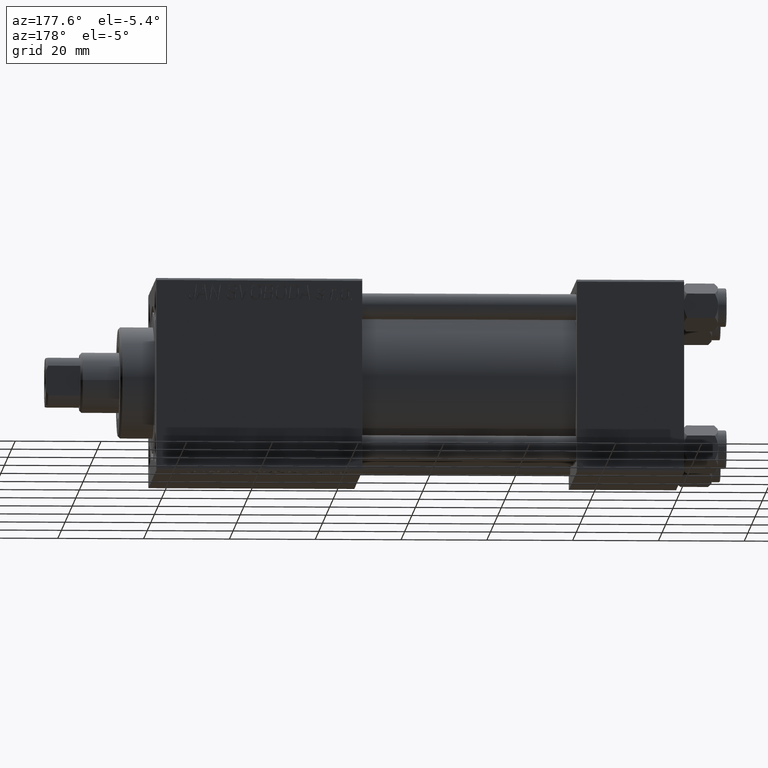
[diagram: clean part render]
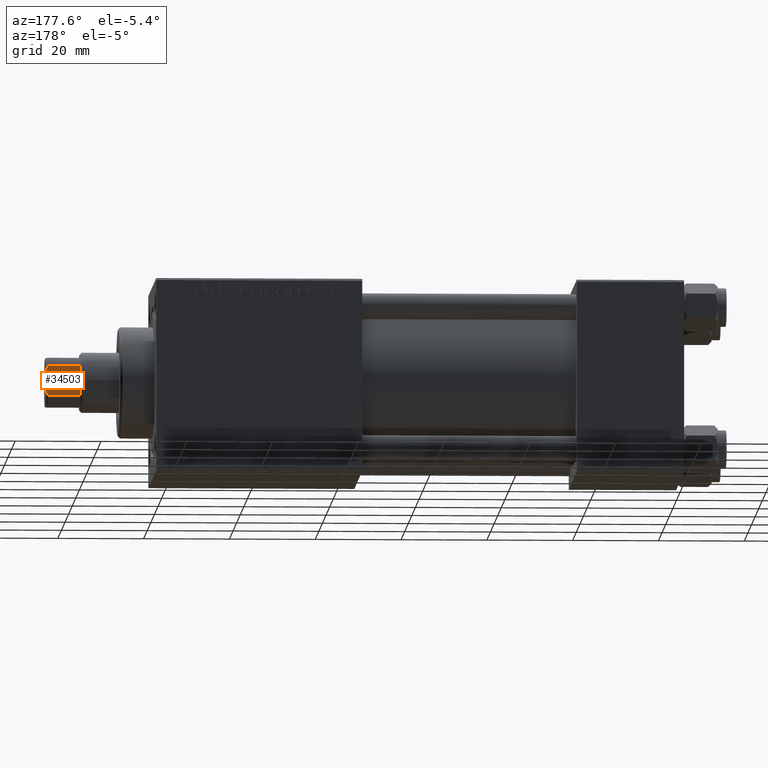
[diagram: same view with one face highlighted and labeled with its STEP entity id]
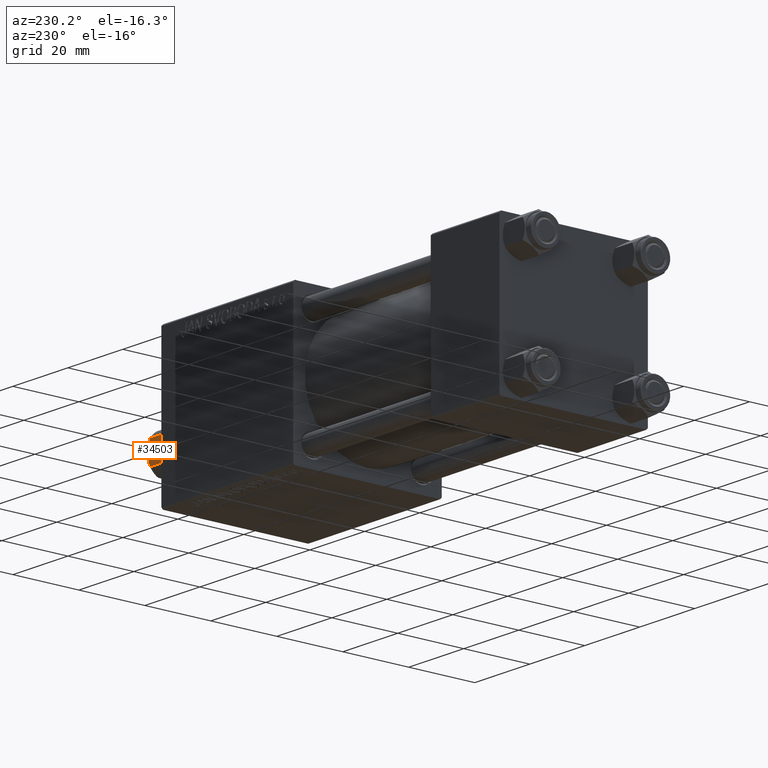
[diagram: same view with one face highlighted and labeled with its STEP entity id]
A machine part, auxiliary view. The second image highlights one B-rep face of the part: STEP entity #34503.
A second angle (auxiliary view) of the same face is appended — the face is thin or edge-on in the first view.
In plain terms, the highlighted planar face has unit normal (0, -1, -0).
Its self-contained STEP definition (entity closure, byte-faithful):
#339 = ORIENTED_EDGE ( 'NONE', *, *, #46043, .F. ) ;
#781 = EDGE_LOOP ( 'NONE', ( #1821, #38259, #20636, #16324, #339, #41978 ) ) ;
#1821 = ORIENTED_EDGE ( 'NONE', *, *, #44370, .T. ) ;
#2365 = VECTOR ( 'NONE', #31240, 1000.000000000000000 ) ;
#3776 = CARTESIAN_POINT ( 'NONE',  ( -5.499999999999999112, -3.464101615137755719, 122.5000000000000142 ) ) ;
#4573 = CARTESIAN_POINT ( 'NONE',  ( -5.499999999999999112, -3.464101615137755719, -0.001000000000001000089 ) ) ;
#5911 = PLANE ( 'NONE',  #24319 ) ;
#7150 = CARTESIAN_POINT ( 'NONE',  ( -5.499999999999999112, 3.464101615137755719, -0.001000000000001000089 ) ) ;
#7658 = EDGE_CURVE ( 'NONE', #9781, #42187, #46945, .T. ) ;
#8231 = B_SPLINE_CURVE_WITH_KNOTS ( 'NONE', 3,
 ( #29089, #25540, #13350, #33148 ),
 .UNSPECIFIED., .F., .F.,
 ( 4, 4 ),
 ( 0.000000000000000000, 0.001177604464225578398 ),
 .UNSPECIFIED. ) ;
#8875 = EDGE_CURVE ( 'NONE', #15617, #38572, #26798, .T. ) ;
#9781 = VERTEX_POINT ( 'NONE', #31173 ) ;
#12137 = VERTEX_POINT ( 'NONE', #30267 ) ;
#13124 = VERTEX_POINT ( 'NONE', #47042 ) ;
#13350 = CARTESIAN_POINT ( 'NONE',  ( -5.500000000000000888, 3.117237133530605497, 122.6848575093798672 ) ) ;
#14441 = CARTESIAN_POINT ( 'NONE',  ( -5.499999999999999112, -3.464101615137755719, 114.9999999999999716 ) ) ;
#15617 = VERTEX_POINT ( 'NONE', #49451 ) ;
#16015 = DIRECTION ( 'NONE',  ( -0.000000000000000000, -0.000000000000000000, 1.000000000000000000 ) ) ;
#16324 = ORIENTED_EDGE ( 'NONE', *, *, #25971, .T. ) ;
#18348 = DIRECTION ( 'NONE',  ( 1.000000000000000000, 1.577021341797097560E-16, -0.000000000000000000 ) ) ;
#20636 = ORIENTED_EDGE ( 'NONE', *, *, #8875, .F. ) ;
#22180 = VECTOR ( 'NONE', #41905, 1000.000000000000000 ) ;
#22739 = CARTESIAN_POINT ( 'NONE',  ( -5.500000000000000888, 5.500000000000000000, 123.0000000000000000 ) ) ;
#24166 = EDGE_CURVE ( 'NONE', #13124, #38572, #41679, .T. ) ;
#24319 = AXIS2_PLACEMENT_3D ( 'NONE', #25727, #18348, #48784 ) ;
#25540 = CARTESIAN_POINT ( 'NONE',  ( -5.500000000000000888, 2.763039233705748554, 122.8540774452369959 ) ) ;
#25727 = CARTESIAN_POINT ( 'NONE',  ( -5.500000000000000888, 5.500000000000000000, 123.0000000000000000 ) ) ;
#25971 = EDGE_CURVE ( 'NONE', #15617, #12137, #8231, .T. ) ;
#26798 = LINE ( 'NONE', #22739, #27597 ) ;
#27597 = VECTOR ( 'NONE', #38452, 1000.000000000000000 ) ;
#29089 = CARTESIAN_POINT ( 'NONE',  ( -5.500000000000000000, 2.397915761656292499, 123.0000000000000000 ) ) ;
#30017 = LINE ( 'NONE', #7150, #22180 ) ;
#30253 = CARTESIAN_POINT ( 'NONE',  ( -5.500000000000000000, -2.397915761656382649, 123.0000000000000000 ) ) ;
#30267 = CARTESIAN_POINT ( 'NONE',  ( -5.499999999999999112, 3.464101615137755719, 122.4999999999999858 ) ) ;
#31173 = CARTESIAN_POINT ( 'NONE',  ( -5.499999999999999112, 3.464101615137758383, 114.9999999999999716 ) ) ;
#31240 = DIRECTION ( 'NONE',  ( 1.577021341797097560E-16, -1.000000000000000000, 0.000000000000000000 ) ) ;
#33148 = CARTESIAN_POINT ( 'NONE',  ( -5.499999999999999112, 3.464101615137755719, 122.4999999999999858 ) ) ;
#33483 = VECTOR ( 'NONE', #16015, 1000.000000000000000 ) ;
#34503 = ADVANCED_FACE ( 'NONE', ( #44485 ), #5911, .F. ) ;
#35013 = CARTESIAN_POINT ( 'NONE',  ( -5.499999999999999112, -3.117237133530632587, 122.6848575093798814 ) ) ;
#38259 = ORIENTED_EDGE ( 'NONE', *, *, #24166, .T. ) ;
#38452 = DIRECTION ( 'NONE',  ( 1.577021341797097560E-16, -1.000000000000000000, 0.000000000000000000 ) ) ;
#38572 = VERTEX_POINT ( 'NONE', #30253 ) ;
#38802 = CARTESIAN_POINT ( 'NONE',  ( -5.500000000000000000, -2.397915761656382649, 123.0000000000000000 ) ) ;
#39096 = CARTESIAN_POINT ( 'NONE',  ( -5.500000000000000888, 5.500000000000000000, 115.0000000000000000 ) ) ;
#41679 = B_SPLINE_CURVE_WITH_KNOTS ( 'NONE', 3,
 ( #3776, #35013, #42112, #38802 ),
 .UNSPECIFIED., .F., .F.,
 ( 4, 4 ),
 ( 0.000000000000000000, 0.001177604464225484289 ),
 .UNSPECIFIED. ) ;
#41905 = DIRECTION ( 'NONE',  ( -0.000000000000000000, -0.000000000000000000, 1.000000000000000000 ) ) ;
#41978 = ORIENTED_EDGE ( 'NONE', *, *, #7658, .T. ) ;
#42112 = CARTESIAN_POINT ( 'NONE',  ( -5.500000000000000000, -2.763039233705808062, 122.8540774452369959 ) ) ;
#42187 = VERTEX_POINT ( 'NONE', #14441 ) ;
#44370 = EDGE_CURVE ( 'NONE', #42187, #13124, #47460, .T. ) ;
#44485 = FACE_OUTER_BOUND ( 'NONE', #781, .T. ) ;
#46043 = EDGE_CURVE ( 'NONE', #9781, #12137, #30017, .T. ) ;
#46945 = LINE ( 'NONE', #39096, #2365 ) ;
#47042 = CARTESIAN_POINT ( 'NONE',  ( -5.499999999999999112, -3.464101615137755719, 122.5000000000000142 ) ) ;
#47460 = LINE ( 'NONE', #4573, #33483 ) ;
#48784 = DIRECTION ( 'NONE',  ( -1.577021341797097560E-16, 1.000000000000000000, 0.000000000000000000 ) ) ;
#49451 = CARTESIAN_POINT ( 'NONE',  ( -5.500000000000000000, 2.397915761656292499, 123.0000000000000000 ) ) ;